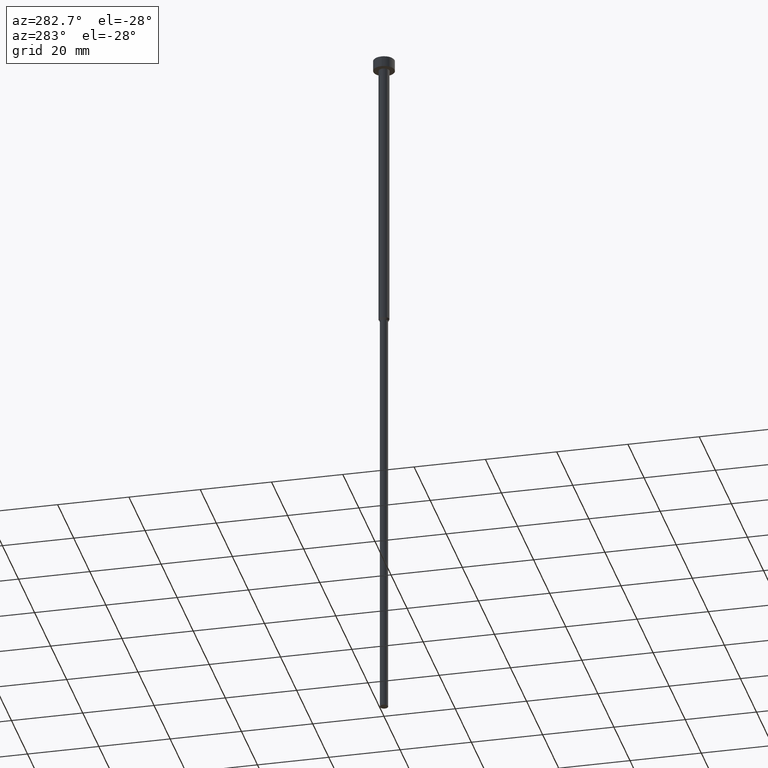
[diagram: clean part render]
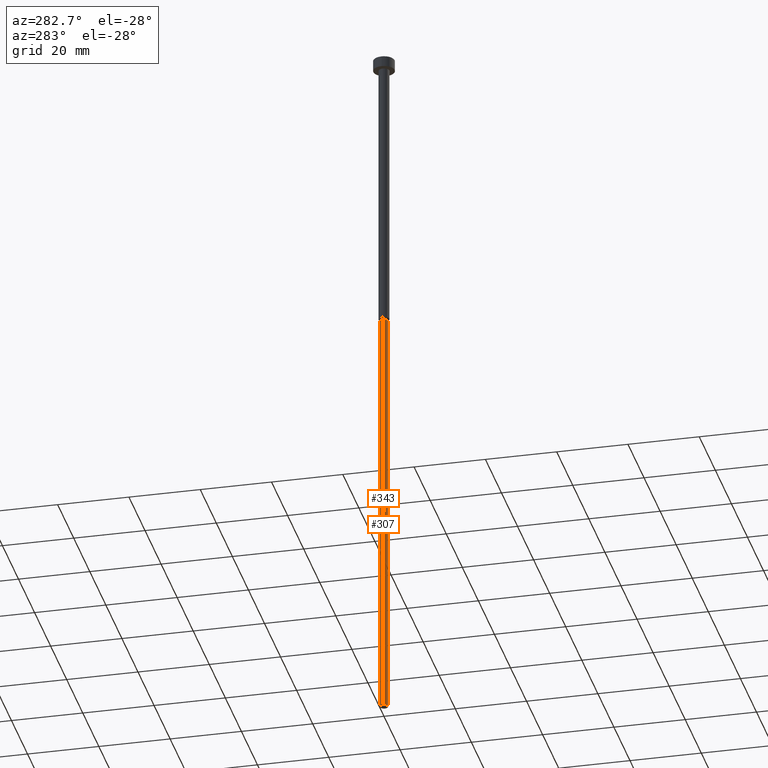
[diagram: same view with one multi-face feature highlighted, each face labeled with its STEP entity id]
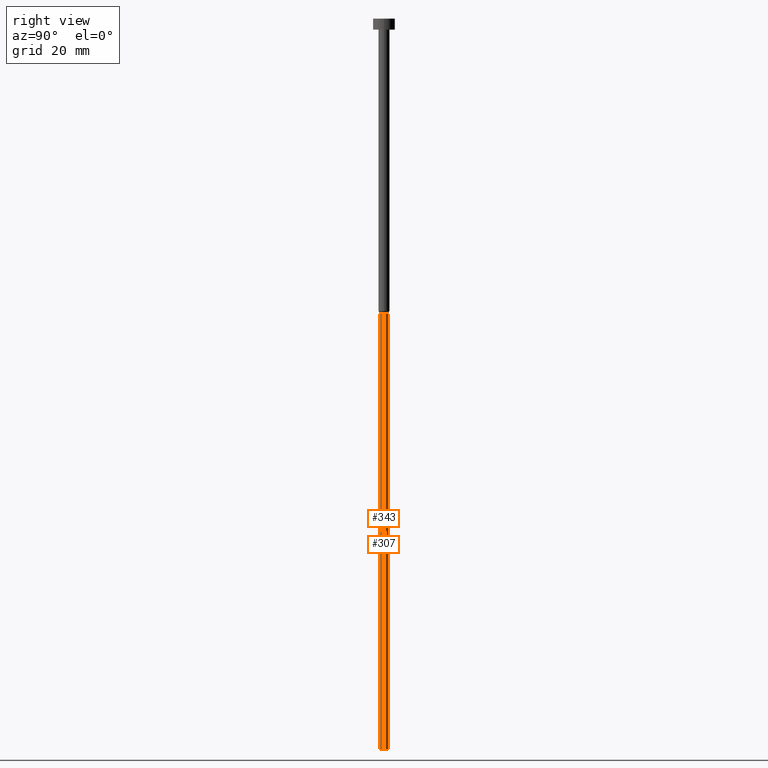
[diagram: same view with one multi-face feature highlighted, each face labeled with its STEP entity id]
A machine part, auxiliary view. The highlighted faces form ONE feature: a constant-radius fillet chain: 2 tangent blend faces with common blend radius 1.15 mm. The faces share edges in the B-rep.
A second angle (right view) of the same feature is appended — it is thin or edge-on in the first view.
Their STEP definitions:
[1] entity #343 (Cylinder):
#21 = EDGE_CURVE ( 'NONE', #212, #133, #223, .T. ) ;
#33 = CARTESIAN_POINT ( 'NONE',  ( 0.000000000000000000, 0.000000000000000000, 0.000000000000000000 ) ) ;
#34 = DIRECTION ( 'NONE',  ( 1.000000000000000000, 0.000000000000000000, 0.000000000000000000 ) ) ;
#37 = CARTESIAN_POINT ( 'NONE',  ( 0.000000000000000000, 0.000000000000000000, -200.0000000000000000 ) ) ;
#54 = CARTESIAN_POINT ( 'NONE',  ( -1.149999999999999911, 1.408343819019456028E-16, -80.60621778264911086 ) ) ;
#64 = CYLINDRICAL_SURFACE ( 'NONE', #240, 1.149999999999999911 ) ;
#68 = CIRCLE ( 'NONE', #192, 1.149999999999999911 ) ;
#71 = DIRECTION ( 'NONE',  ( -0.000000000000000000, -0.000000000000000000, 1.000000000000000000 ) ) ;
#76 = DIRECTION ( 'NONE',  ( -0.000000000000000000, -0.000000000000000000, 1.000000000000000000 ) ) ;
#79 = AXIS2_PLACEMENT_3D ( 'NONE', #131, #76, #239 ) ;
#95 = EDGE_CURVE ( 'NONE', #268, #212, #68, .T. ) ;
#108 = ORIENTED_EDGE ( 'NONE', *, *, #21, .T. ) ;
#111 = CARTESIAN_POINT ( 'NONE',  ( 1.149999999999999911, 0.000000000000000000, 0.000000000000000000 ) ) ;
#118 = EDGE_CURVE ( 'NONE', #268, #184, #230, .T. ) ;
#131 = CARTESIAN_POINT ( 'NONE',  ( 0.000000000000000000, 0.000000000000000000, -80.60621778264911086 ) ) ;
#133 = VERTEX_POINT ( 'NONE', #276 ) ;
#153 = VECTOR ( 'NONE', #71, 1000.000000000000000 ) ;
#163 = ORIENTED_EDGE ( 'NONE', *, *, #95, .T. ) ;
#182 = ORIENTED_EDGE ( 'NONE', *, *, #118, .F. ) ;
#184 = VERTEX_POINT ( 'NONE', #54 ) ;
#187 = FACE_OUTER_BOUND ( 'NONE', #209, .T. ) ;
#191 = DIRECTION ( 'NONE',  ( -0.000000000000000000, -0.000000000000000000, 1.000000000000000000 ) ) ;
#192 = AXIS2_PLACEMENT_3D ( 'NONE', #37, #191, #301 ) ;
#205 = CARTESIAN_POINT ( 'NONE',  ( -1.149999999999999911, 1.408343819019456028E-16, 0.000000000000000000 ) ) ;
#207 = ORIENTED_EDGE ( 'NONE', *, *, #310, .F. ) ;
#208 = CARTESIAN_POINT ( 'NONE',  ( -1.149999999999999911, 1.408343819019456028E-16, -200.0000000000000000 ) ) ;
#209 = EDGE_LOOP ( 'NONE', ( #182, #163, #108, #207 ) ) ;
#212 = VERTEX_POINT ( 'NONE', #292 ) ;
#223 = LINE ( 'NONE', #111, #269 ) ;
#227 = CIRCLE ( 'NONE', #79, 1.149999999999999911 ) ;
#230 = LINE ( 'NONE', #205, #153 ) ;
#239 = DIRECTION ( 'NONE',  ( 1.000000000000000000, 0.000000000000000000, 0.000000000000000000 ) ) ;
#240 = AXIS2_PLACEMENT_3D ( 'NONE', #33, #296, #34 ) ;
#268 = VERTEX_POINT ( 'NONE', #208 ) ;
#269 = VECTOR ( 'NONE', #271, 1000.000000000000000 ) ;
#271 = DIRECTION ( 'NONE',  ( -0.000000000000000000, -0.000000000000000000, 1.000000000000000000 ) ) ;
#276 = CARTESIAN_POINT ( 'NONE',  ( 1.149999999999999911, 0.000000000000000000, -80.60621778264911086 ) ) ;
#292 = CARTESIAN_POINT ( 'NONE',  ( 1.149999999999999911, 0.000000000000000000, -200.0000000000000000 ) ) ;
#296 = DIRECTION ( 'NONE',  ( -0.000000000000000000, -0.000000000000000000, 1.000000000000000000 ) ) ;
#301 = DIRECTION ( 'NONE',  ( 1.000000000000000000, 0.000000000000000000, 0.000000000000000000 ) ) ;
#310 = EDGE_CURVE ( 'NONE', #184, #133, #227, .T. ) ;
#343 = ADVANCED_FACE ( 'NONE', ( #187 ), #64, .T. ) ;
[2] entity #307 (Cylinder):
#21 = EDGE_CURVE ( 'NONE', #212, #133, #223, .T. ) ;
#38 = CIRCLE ( 'NONE', #120, 1.149999999999999911 ) ;
#48 = AXIS2_PLACEMENT_3D ( 'NONE', #129, #237, #53 ) ;
#53 = DIRECTION ( 'NONE',  ( 1.000000000000000000, 0.000000000000000000, 0.000000000000000000 ) ) ;
#54 = CARTESIAN_POINT ( 'NONE',  ( -1.149999999999999911, 1.408343819019456028E-16, -80.60621778264911086 ) ) ;
#56 = FACE_OUTER_BOUND ( 'NONE', #231, .T. ) ;
#71 = DIRECTION ( 'NONE',  ( -0.000000000000000000, -0.000000000000000000, 1.000000000000000000 ) ) ;
#75 = DIRECTION ( 'NONE',  ( -0.000000000000000000, -0.000000000000000000, 1.000000000000000000 ) ) ;
#80 = DIRECTION ( 'NONE',  ( -0.000000000000000000, -0.000000000000000000, 1.000000000000000000 ) ) ;
#109 = CARTESIAN_POINT ( 'NONE',  ( 0.000000000000000000, 0.000000000000000000, -200.0000000000000000 ) ) ;
#111 = CARTESIAN_POINT ( 'NONE',  ( 1.149999999999999911, 0.000000000000000000, 0.000000000000000000 ) ) ;
#118 = EDGE_CURVE ( 'NONE', #268, #184, #230, .T. ) ;
#120 = AXIS2_PLACEMENT_3D ( 'NONE', #318, #75, #354 ) ;
#129 = CARTESIAN_POINT ( 'NONE',  ( 0.000000000000000000, 0.000000000000000000, 0.000000000000000000 ) ) ;
#133 = VERTEX_POINT ( 'NONE', #276 ) ;
#135 = CYLINDRICAL_SURFACE ( 'NONE', #48, 1.149999999999999911 ) ;
#153 = VECTOR ( 'NONE', #71, 1000.000000000000000 ) ;
#162 = ORIENTED_EDGE ( 'NONE', *, *, #21, .F. ) ;
#180 = EDGE_CURVE ( 'NONE', #212, #268, #188, .T. ) ;
#183 = DIRECTION ( 'NONE',  ( 1.000000000000000000, 0.000000000000000000, 0.000000000000000000 ) ) ;
#184 = VERTEX_POINT ( 'NONE', #54 ) ;
#188 = CIRCLE ( 'NONE', #282, 1.149999999999999911 ) ;
#205 = CARTESIAN_POINT ( 'NONE',  ( -1.149999999999999911, 1.408343819019456028E-16, 0.000000000000000000 ) ) ;
#208 = CARTESIAN_POINT ( 'NONE',  ( -1.149999999999999911, 1.408343819019456028E-16, -200.0000000000000000 ) ) ;
#212 = VERTEX_POINT ( 'NONE', #292 ) ;
#223 = LINE ( 'NONE', #111, #269 ) ;
#230 = LINE ( 'NONE', #205, #153 ) ;
#231 = EDGE_LOOP ( 'NONE', ( #236, #327, #287, #162 ) ) ;
#236 = ORIENTED_EDGE ( 'NONE', *, *, #180, .T. ) ;
#237 = DIRECTION ( 'NONE',  ( -0.000000000000000000, -0.000000000000000000, 1.000000000000000000 ) ) ;
#268 = VERTEX_POINT ( 'NONE', #208 ) ;
#269 = VECTOR ( 'NONE', #271, 1000.000000000000000 ) ;
#271 = DIRECTION ( 'NONE',  ( -0.000000000000000000, -0.000000000000000000, 1.000000000000000000 ) ) ;
#276 = CARTESIAN_POINT ( 'NONE',  ( 1.149999999999999911, 0.000000000000000000, -80.60621778264911086 ) ) ;
#282 = AXIS2_PLACEMENT_3D ( 'NONE', #109, #80, #183 ) ;
#287 = ORIENTED_EDGE ( 'NONE', *, *, #331, .F. ) ;
#292 = CARTESIAN_POINT ( 'NONE',  ( 1.149999999999999911, 0.000000000000000000, -200.0000000000000000 ) ) ;
#307 = ADVANCED_FACE ( 'NONE', ( #56 ), #135, .T. ) ;
#318 = CARTESIAN_POINT ( 'NONE',  ( 0.000000000000000000, 0.000000000000000000, -80.60621778264911086 ) ) ;
#327 = ORIENTED_EDGE ( 'NONE', *, *, #118, .T. ) ;
#331 = EDGE_CURVE ( 'NONE', #133, #184, #38, .T. ) ;
#354 = DIRECTION ( 'NONE',  ( 1.000000000000000000, 0.000000000000000000, 0.000000000000000000 ) ) ;